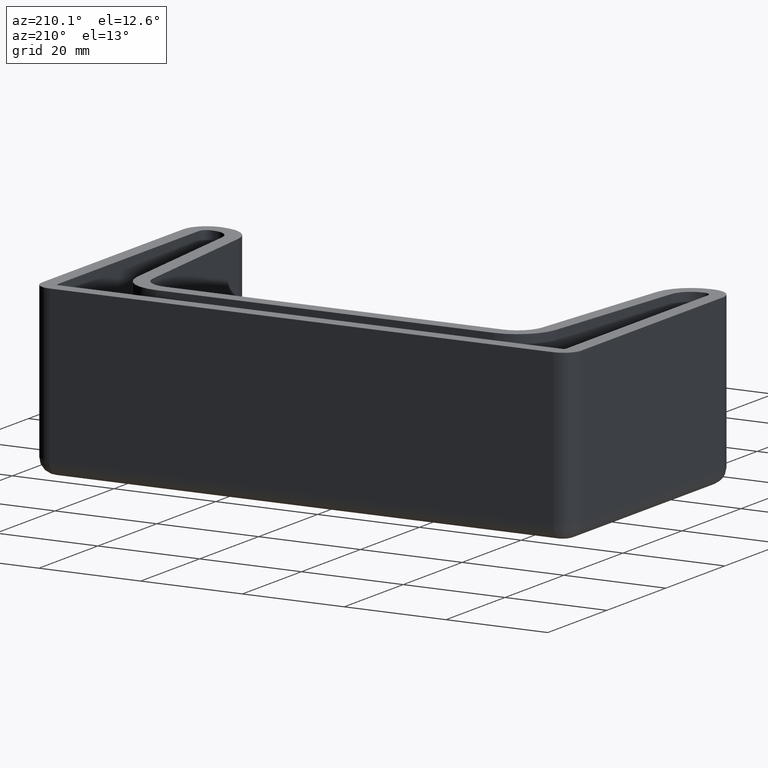
[diagram: clean part render]
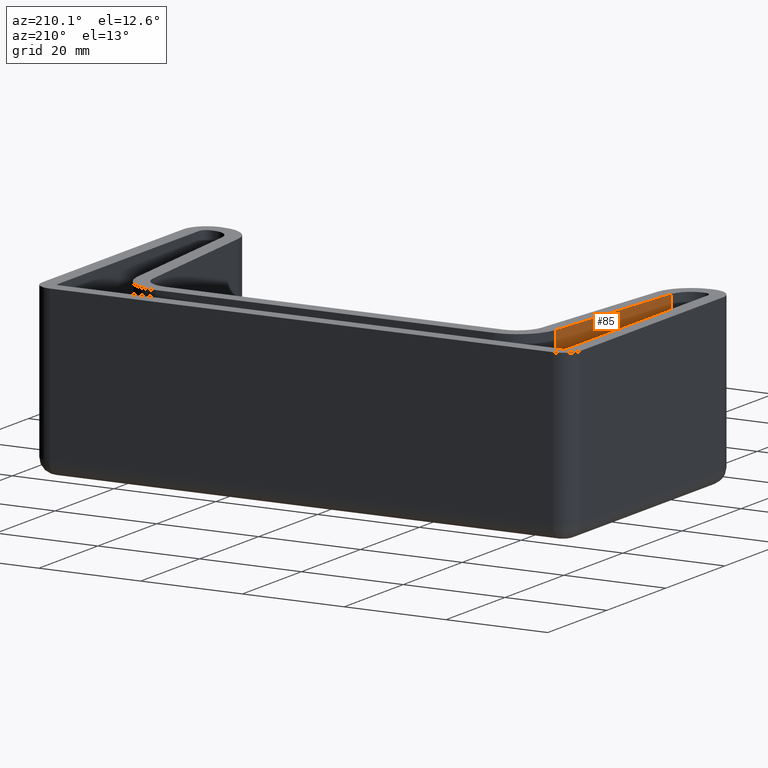
[diagram: same view with one face highlighted and labeled with its STEP entity id]
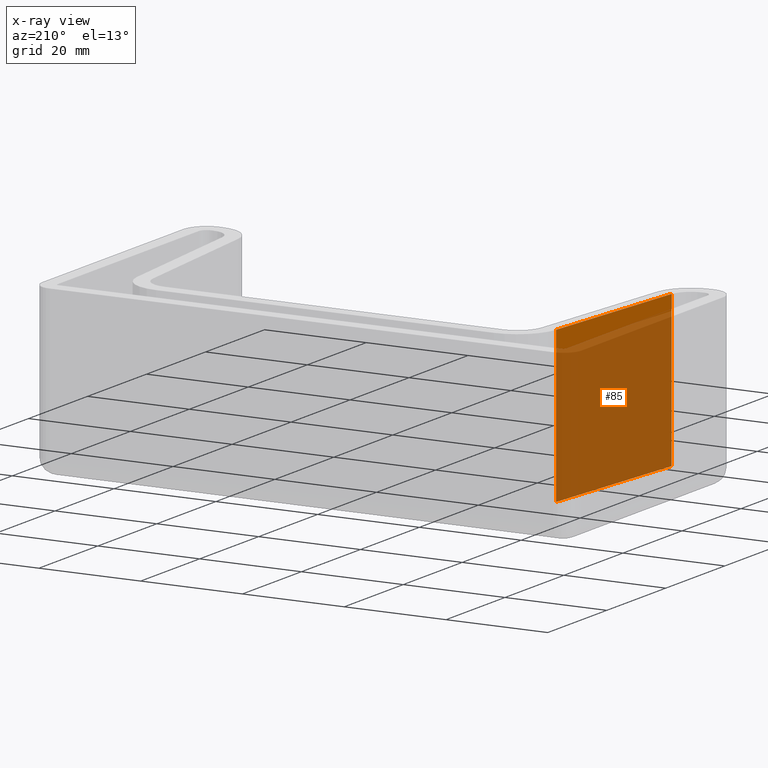
[diagram: x-ray of the same camera — body ghosted, the highlighted face saturated]
A machine part, auxiliary view. The second image highlights one B-rep face of the part: STEP entity #85.
The next image is the same camera in x-ray: the body ghosted, the highlighted face saturated — about 89% of this face is hidden behind the body in this view.
In plain terms, the highlighted planar face has unit normal (0.9962, -0.0872, -0).
Its self-contained STEP definition (entity closure, byte-faithful):
#85 = ADVANCED_FACE( '', ( #148 ), #149, .F. );
#148 = FACE_OUTER_BOUND( '', #251, .T. );
#149 = PLANE( '', #252 );
#251 = EDGE_LOOP( '', ( #503, #504, #505, #506 ) );
#252 = AXIS2_PLACEMENT_3D( '', #507, #508, #509 );
#503 = ORIENTED_EDGE( '', *, *, #815, .F. );
#504 = ORIENTED_EDGE( '', *, *, #853, .T. );
#505 = ORIENTED_EDGE( '', *, *, #842, .T. );
#506 = ORIENTED_EDGE( '', *, *, #840, .F. );
#507 = CARTESIAN_POINT( '', ( -41.1709081925946, -9.80275405801870, 0.000188393064011284 ) );
#508 = DIRECTION( '', ( 0.996194698091746, -0.0871557427476585, -1.11321488058643E-016 ) );
#509 = DIRECTION( '', ( 1.22460635382238E-016, 1.22460635382238E-016, 1.00000000000000 ) );
#815 = EDGE_CURVE( '', #967, #969, #970, .T. );
#840 = EDGE_CURVE( '', #969, #1011, #1012, .T. );
#842 = EDGE_CURVE( '', #1014, #1011, #1015, .T. );
#853 = EDGE_CURVE( '', #967, #1014, #1034, .T. );
#967 = VERTEX_POINT( '', #1187 );
#969 = VERTEX_POINT( '', #1189 );
#970 = LINE( '', #1190, #1191 );
#1011 = VERTEX_POINT( '', #1248 );
#1012 = LINE( '', #1249, #1250 );
#1014 = VERTEX_POINT( '', #1252 );
#1015 = LINE( '', #1253, #1254 );
#1034 = LINE( '', #1278, #1279 );
#1187 = CARTESIAN_POINT( '', ( -41.1709081925946, -9.80275405801870, 0.000188393064011284 ) );
#1189 = CARTESIAN_POINT( '', ( -44.1495357623693, -43.8486229709906, 0.000188393064015454 ) );
#1190 = CARTESIAN_POINT( '', ( -41.4708004022309, -13.2305376993530, 0.000188393064011704 ) );
#1191 = VECTOR( '', #1457, 1000.00000000000 );
#1248 = CARTESIAN_POINT( '', ( -44.1495357623693, -43.8486229709906, -29.9998116069360 ) );
#1249 = CARTESIAN_POINT( '', ( -44.1495357623693, -43.8486229709906, 0.000188393064015454 ) );
#1250 = VECTOR( '', #1498, 1000.00000000000 );
#1252 = CARTESIAN_POINT( '', ( -41.1709081925946, -9.80275405801870, -29.9998116069360 ) );
#1253 = CARTESIAN_POINT( '', ( -44.1495357623693, -43.8486229709906, -29.9998116069360 ) );
#1254 = VECTOR( '', #1502, 1000.00000000000 );
#1278 = CARTESIAN_POINT( '', ( -41.1709081925946, -9.80275405801870, 0.000188393064011284 ) );
#1279 = VECTOR( '', #1523, 1000.00000000000 );
#1457 = DIRECTION( '', ( -0.0871557427476585, -0.996194698091746, 1.32667783326821E-016 ) );
#1498 = DIRECTION( '', ( -1.22460635382238E-016, -1.22460635382238E-016, -1.00000000000000 ) );
#1502 = DIRECTION( '', ( -0.0871557427476585, -0.996194698091746, 1.32667783326821E-016 ) );
#1523 = DIRECTION( '', ( -1.22460635382238E-016, -1.22460635382238E-016, -1.00000000000000 ) );